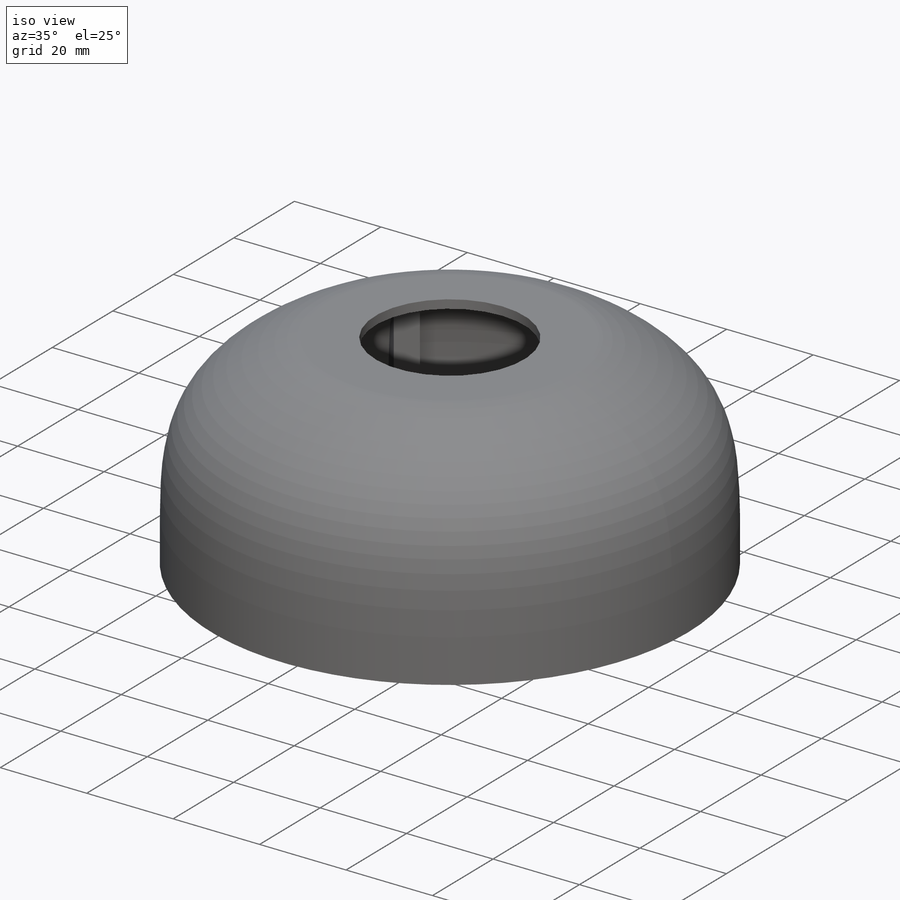
[diagram: iso view]
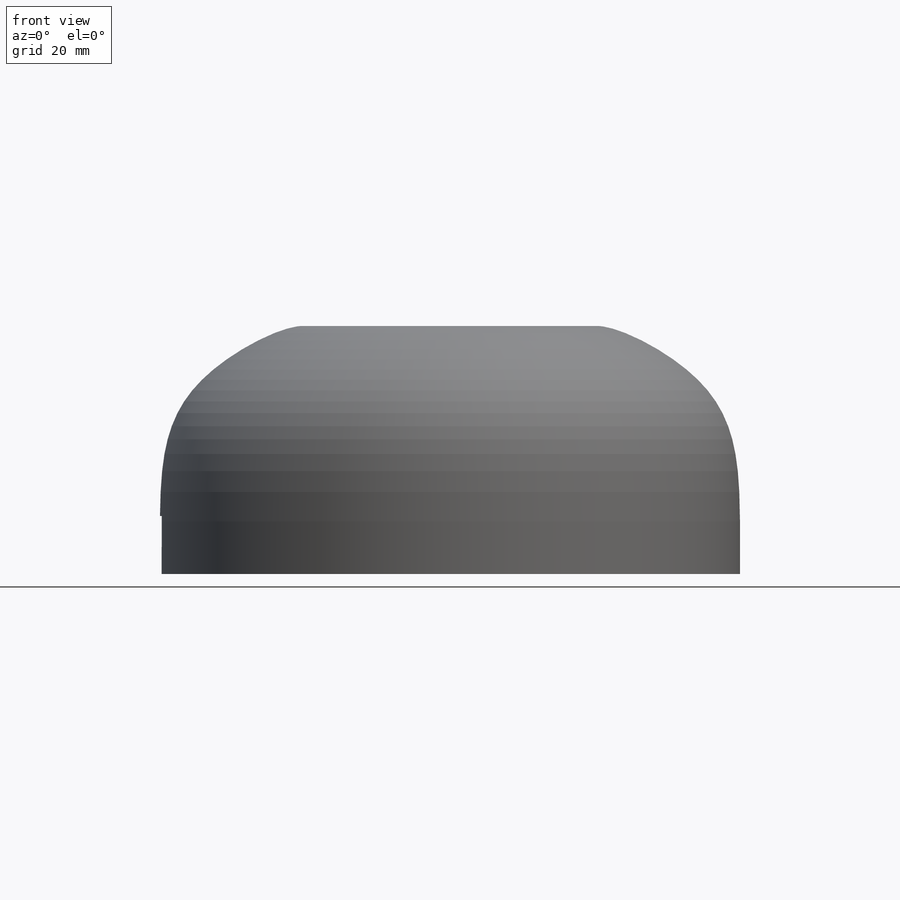
[diagram: front view]
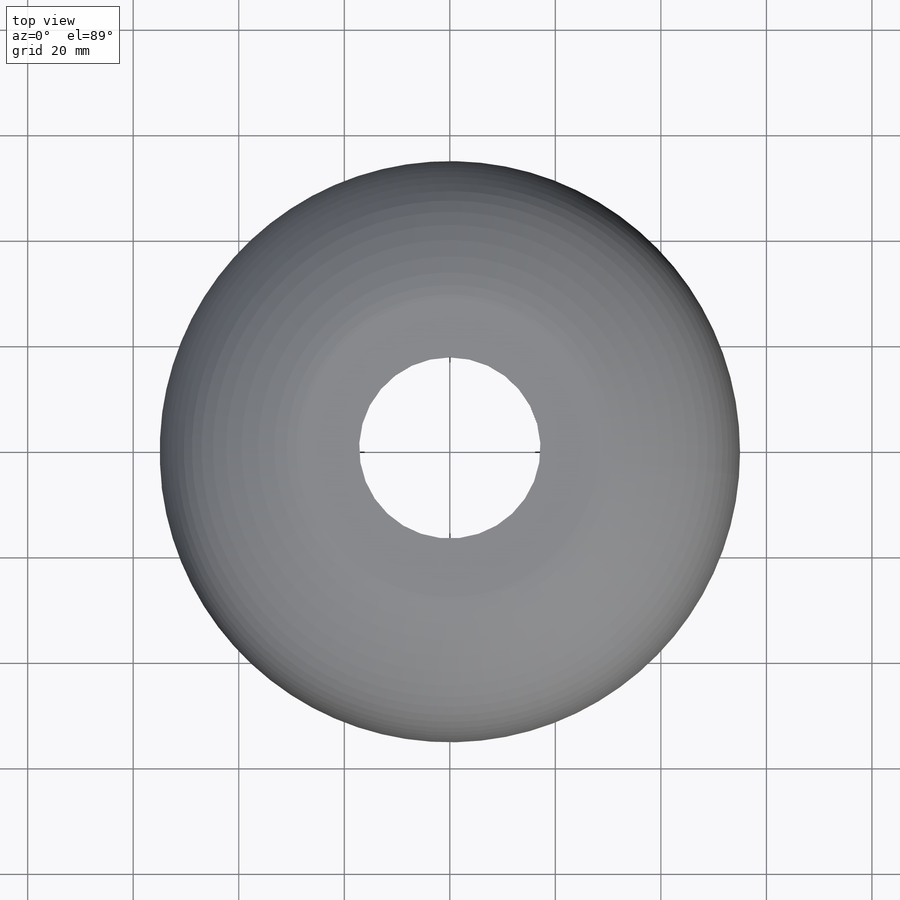
[diagram: top view]
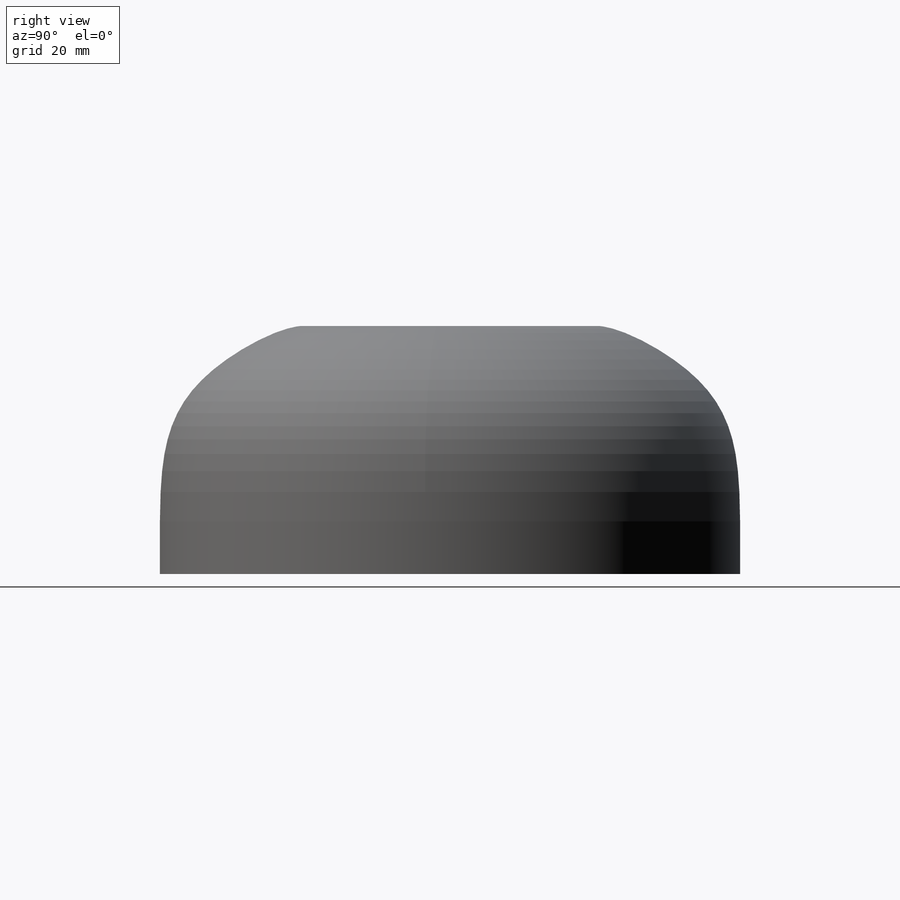
[diagram: right view]
SOLIDWORKS PART (.sldprt)
format: sldprt  version: not decoded by parser v0  size: 284,672 bytes
history: native  units: mm
features: sketch x4, plane x3, cut_extrude x2, material x1, revolve x1, extrude x1 (+9 scaffold rows collapsed)
feature tree (21):
  scaffold x9  (default folders/planes/origin — collapsed)
  material  "ABS"
  plane  "Ebene vorne"
  plane  "Ebene oben"
  plane  "Ebene rechts"
  sketch  "Skizze1"  dims[c1.D1=110.0mm c1.D2=~66.240816mm c1.D3=40.0mm c2.D1=55.0mm c2.D2=55.0mm c2.D3=40.0mm c2.D4=40.0mm c2.D5=60.0mm c3.D2=2.0mm c3.D5=2.0mm c3.D6=2.0mm c3.D7=2.0mm c4.D6=2.0mm c4.D8=45.0mm]
  revolve  "Rotation1"  Angle=360deg
  sketch  "Skizze2"  dims[c1.D1=2.5mm c1.D8=53.0mm c1.D2=50.0mm c1.D3=50.0mm c2.D3=45.0deg c2.D4=2.5mm c2.D5=2.5mm c2.D6=2.5mm c2.D7=~5.654471mm c2.D8=~5.441005mm c2.D2=2.5mm c3.D4=2.5mm c3.D5=3.0mm c3.D6=50.0mm c3.D7=2.0]
  extrude  "Aufsatz-Linear austragen3"  [1 undecoded]
  sketch  "Skizze3"
  cut_extrude  "Schnitt-Linear austragen1"  Depth=3mm
  sketch  "Skizze4"  dims[D1=14.0mm D2=11.0mm D3=6.5mm]
  cut_extrude  "Schnitt-Linear austragen2"  [1 undecoded]
decode coverage: 5 of 8 modeling features carry decoded parameters
note: ~ marks probable driven/reference dimensions
note: 2 parameter values undecoded
note: suppression state not decoded; provenance and decode notes live in map.json
